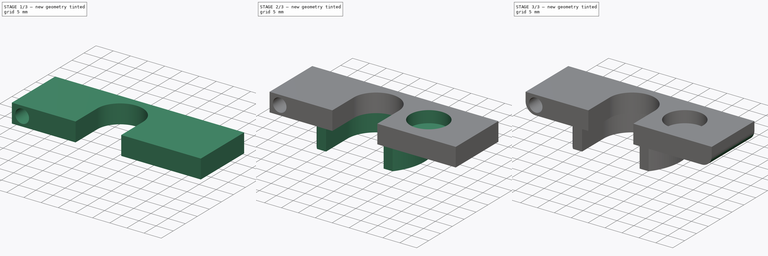
[diagram: build sequence overview — one tinted view per stage of 3, left to right]
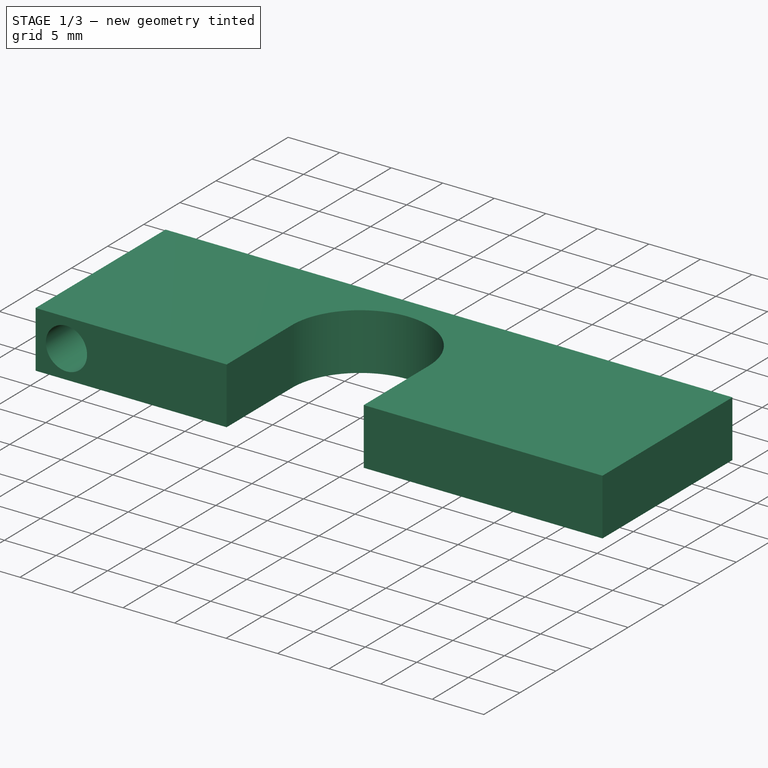
[diagram: stage 1 of 3 — iso view after this stage's code; geometry added in this stage tinted green]
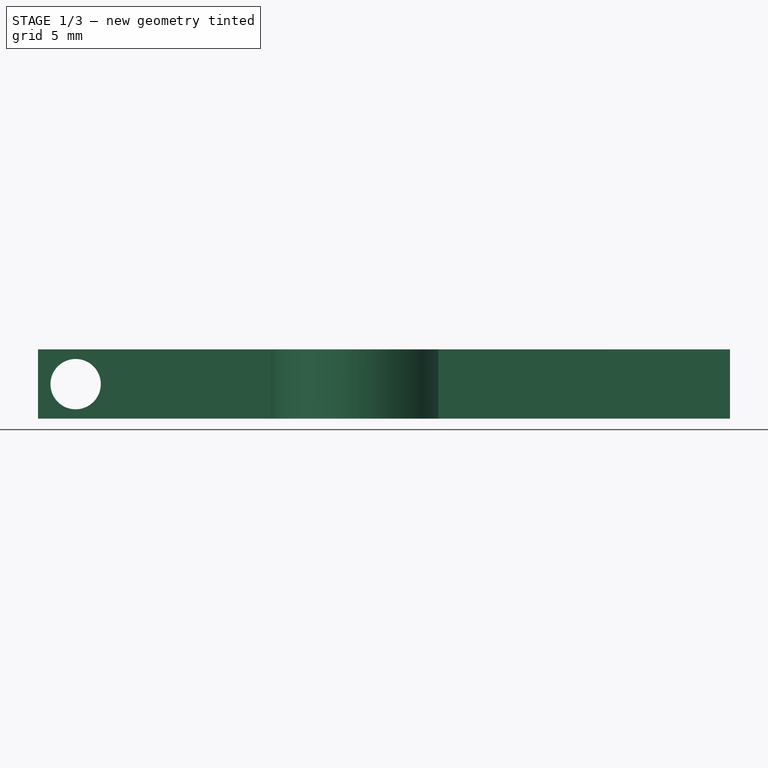
[diagram: stage 1 of 3 — front view after this stage's code; geometry added in this stage tinted green]
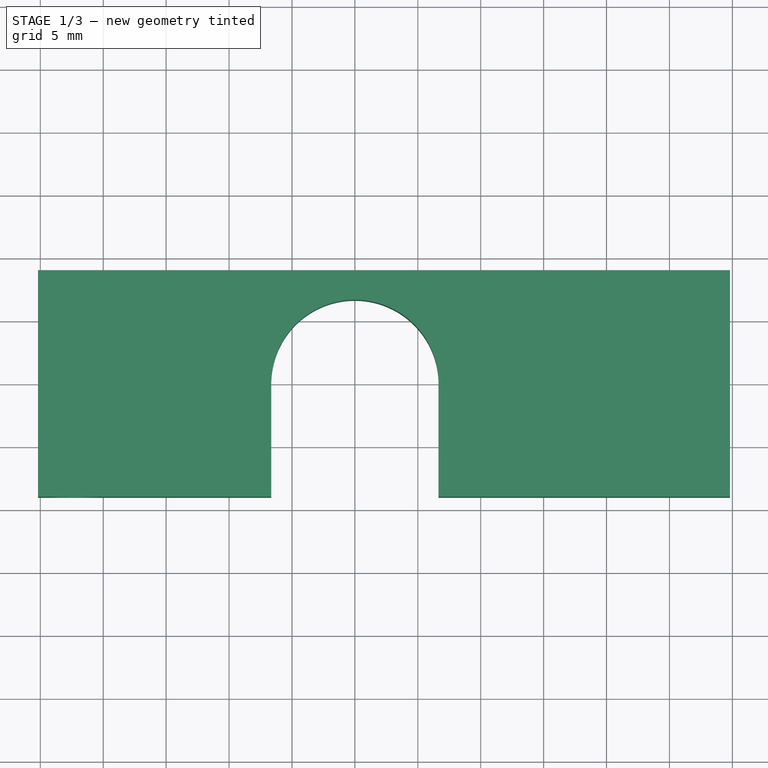
[diagram: stage 1 of 3 — top view after this stage's code; geometry added in this stage tinted green]
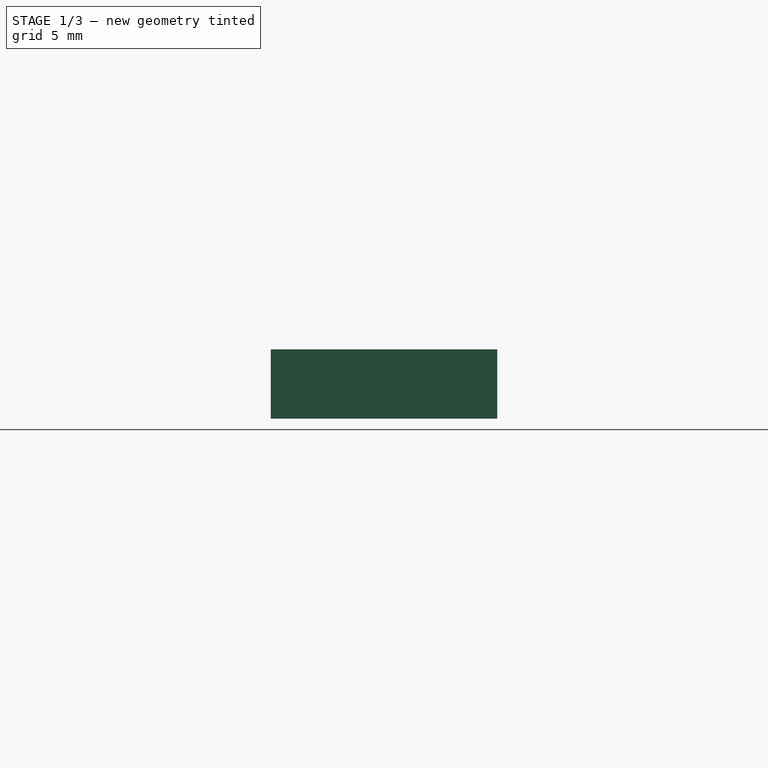
[diagram: stage 1 of 3 — right view after this stage's code; geometry added in this stage tinted green]
FCSTD DOCUMENT  (FreeCAD 0.15R4671 (Git))
Label: ExtruderMount
License: All rights reserved
LicenseURL: http://en.wikipedia.org/wiki/All_rights_reserved
objects: Sketcher::SketchObject×4, PartDesign::Pad×2, PartDesign::Pocket×2, Part::MultiFuse×1, PartDesign::Fillet×1
note: 14 computed .brp shape members not serialized (recipe doc carries the construction recipe); baked Part::Feature solids carry a one-line shape summary decoded from their .brp

FEATURE [Sketcher::SketchObject] Sketch  label="BaseSketch"
  Placement = pos=(0,0,6) rot=(0,0,1;0rad)
  sketch-geometry (8):
    g0: ArcOfCircle CenterX=0 CenterY=0 CenterZ=0 NormalX=0 NormalY=0 NormalZ=1 Radius=6.65 StartAngle=4.483e-09 EndAngle=3.14159
    g1: LineSegment StartX=6.65 StartY=2.9812e-08 StartZ=0 EndX=6.65 EndY=-9 EndZ=0
    g2: LineSegment StartX=-6.65 StartY=5.3691e-08 StartZ=0 EndX=-6.65 EndY=-9 EndZ=0
    g3: LineSegment StartX=-6.65 StartY=-9 StartZ=0 EndX=-25.1864 EndY=-9 EndZ=0
    g4: LineSegment StartX=-25.1864 StartY=-9 StartZ=0 EndX=-25.1864 EndY=9 EndZ=0
    g5: LineSegment StartX=-25.1864 StartY=9 StartZ=0 EndX=29.8136 EndY=9 EndZ=0
    g6: LineSegment StartX=29.8136 StartY=9 StartZ=0 EndX=29.8136 EndY=-9 EndZ=0
    g7: LineSegment StartX=29.8136 StartY=-9 StartZ=0 EndX=6.65 EndY=-9 EndZ=0
  constraints (23):
    c: Coincident(g0,g-1)
    c: Radius(g0) = 6.65
    c: Vertical(g2)
    c: Vertical(g1)
    c: Coincident(g1,g0)
    c: Coincident(g2,g0)
    c: Tangent(g2,g0)
    c: Tangent(g0,g1)
    c: Coincident(g2,g3)
    c: Horizontal(g3)
    c: Coincident(g3,g4)
    c: Vertical(g4)
    c: Coincident(g4,g5)
    c: Horizontal(g5)
    c: Coincident(g5,g6)
    c: Vertical(g6)
    c: Coincident(g6,g7)
    c: Coincident(g7,g1)
    c: Horizontal(g7)
    c: Equal(g1,g2)
    c: Symmetric(g6,g5,g-1)
    c: DistanceY(g0,g1) = -9
    c: DistanceX(g5) = 55
FEATURE [Sketcher::SketchObject] Sketch005
  Placement = pos=(0,0,0) rot=(1,0,0;3.14159rad)
  sketch-geometry (8):
    g0: ArcOfCircle CenterX=0 CenterY=0 CenterZ=0 NormalX=0 NormalY=0 NormalZ=1 Radius=8.5 StartAngle=3.14159 EndAngle=6.28319
    g1: LineSegment StartX=8.5 StartY=1.38816e-07 StartZ=0 EndX=8.5 EndY=9 EndZ=0
    g2: LineSegment StartX=-8.5 StartY=1.12131e-07 StartZ=0 EndX=-8.5 EndY=9 EndZ=0
    g3: LineSegment StartX=8.5 StartY=9 StartZ=0 EndX=11.167 EndY=9 EndZ=0
    g4: LineSegment StartX=-8.5 StartY=9 StartZ=0 EndX=-11.167 EndY=9 EndZ=0
    g5: ArcOfCircle CenterX=0 CenterY=0 CenterZ=0 NormalX=0 NormalY=0 NormalZ=1 Radius=14.3423 StartAngle=5.60483 EndAngle=6.96154
    g6: ArcOfCircle CenterX=-0.460658 CenterY=-0.543383 CenterZ=0 NormalX=0 NormalY=0 NormalZ=1 Radius=14.3423 StartAngle=2.41356 EndAngle=3.77219
    g7: LineSegment StartX=-12.0446 StartY=-9 StartZ=0 EndX=11.167 EndY=-9 EndZ=0
  constraints (23):
    c: Coincident(g0,g-1)
    c: Coincident(g1,g0)
    c: Coincident(g2,g0)
    c: Vertical(g1)
    c: Vertical(g2)
    c: Equal(g2,g1)
    c: Tangent(g1,g0)
    c: Tangent(g2,g0)
    c: Radius(g0) = 8.5
    c: Coincident(g3,g1)
    c: Horizontal(g3)
    c: Coincident(g4,g2)
    c: Horizontal(g4)
    c: DistanceY(g1,g0) = -9
    c: Coincident(g5,g-1)
    c: Coincident(g5,g3)
    c: Coincident(g6,g4)
    c: Coincident(g7,g6)
    c: Coincident(g7,g5)
    c: Horizontal(g7)
    c: Equal(g5,g6)
    c: DistanceY(g5,g3) = 18
    c: Equal(g3,g4)
FEATURE [PartDesign::Pad] Pad
  Length = 5.5
  Length2 = 100
  Placement = pos=(0,0,6) rot=(0,0,1;0rad)
  Sketch = -> Sketch
  Type = 0
FEATURE [Sketcher::SketchObject] Sketch006
  Placement = pos=(0,-9,6) rot=(1,0,0;1.5708rad)
  Support = -> Pad [Face3]
  sketch-geometry (1):
    g0: Circle CenterX=-22.1946 CenterY=2.73961 CenterZ=0 NormalX=0 NormalY=0 NormalZ=1 Radius=2
  constraints (1):
    c: Radius(g0) = 2
FEATURE [PartDesign::Pocket] Pocket001
  Length = 50
  Placement = pos=(0,0,6) rot=(0,0,1;0rad)
  Sketch = -> Sketch006
  Type = 0
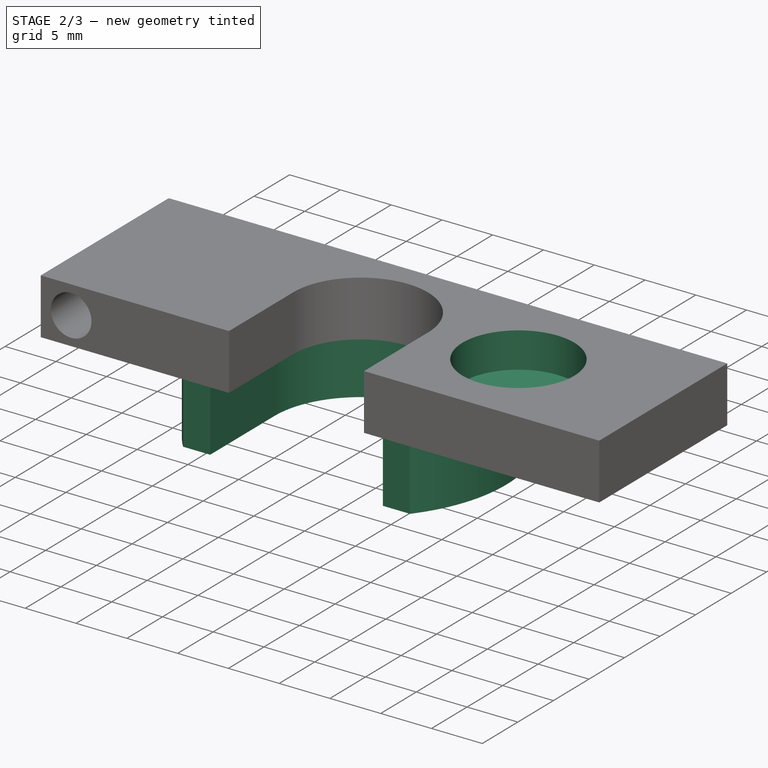
[diagram: stage 2 of 3 — iso view after this stage's code; geometry added in this stage tinted green]
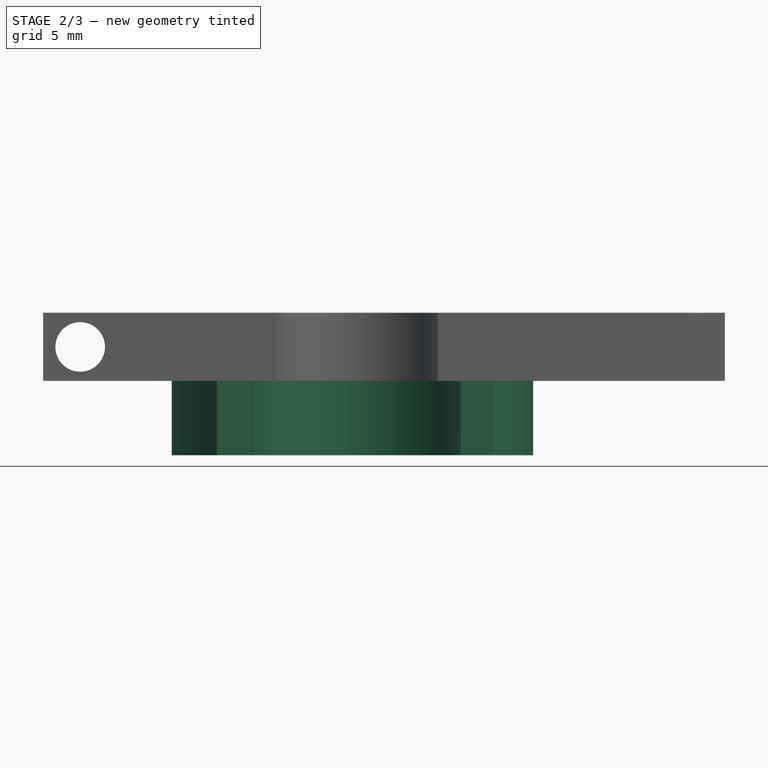
[diagram: stage 2 of 3 — front view after this stage's code; geometry added in this stage tinted green]
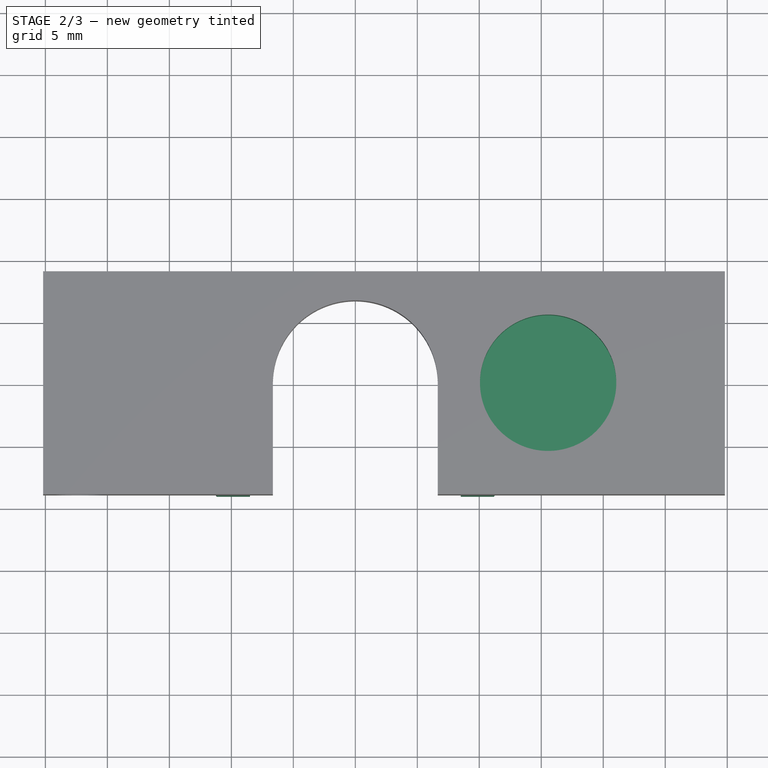
[diagram: stage 2 of 3 — top view after this stage's code; geometry added in this stage tinted green]
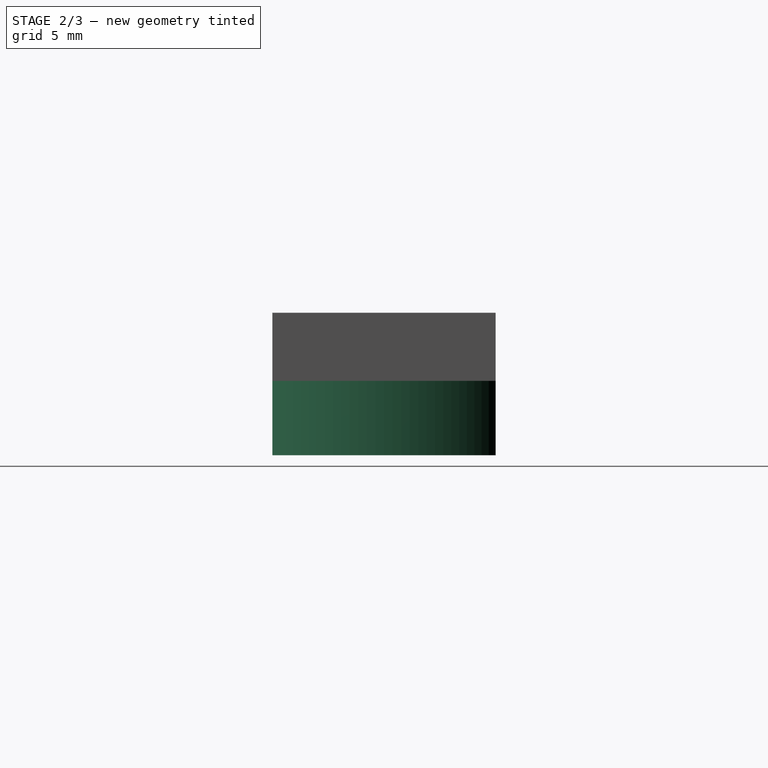
[diagram: stage 2 of 3 — right view after this stage's code; geometry added in this stage tinted green]
FEATURE [PartDesign::Pad] Pad001
  Length = 6
  Length2 = 100
  Placement = pos=(0,0,0) rot=(1,0,0;3.14159rad)
  Reversed = true
  Sketch = -> Sketch005
  Type = 0
FEATURE [Sketcher::SketchObject] Sketch004
  Placement = pos=(0,0,11.5) rot=(0,0,1;0rad)
  Support = -> Pocket001 [Face5]
  sketch-geometry (1):
    g0: Circle CenterX=15.5529 CenterY=0 CenterZ=0 NormalX=0 NormalY=0 NormalZ=1 Radius=5.5
  constraints (3):
    c: PointOnObject(g0,g-1)
    c: DistanceX(g0) = 15.5529
    c: Radius(g0) = 5.5
FEATURE [PartDesign::Pocket] Pocket
  Length = 3.5
  Placement = pos=(0,0,6) rot=(0,0,1;0rad)
  Sketch = -> Sketch004
  Type = 0
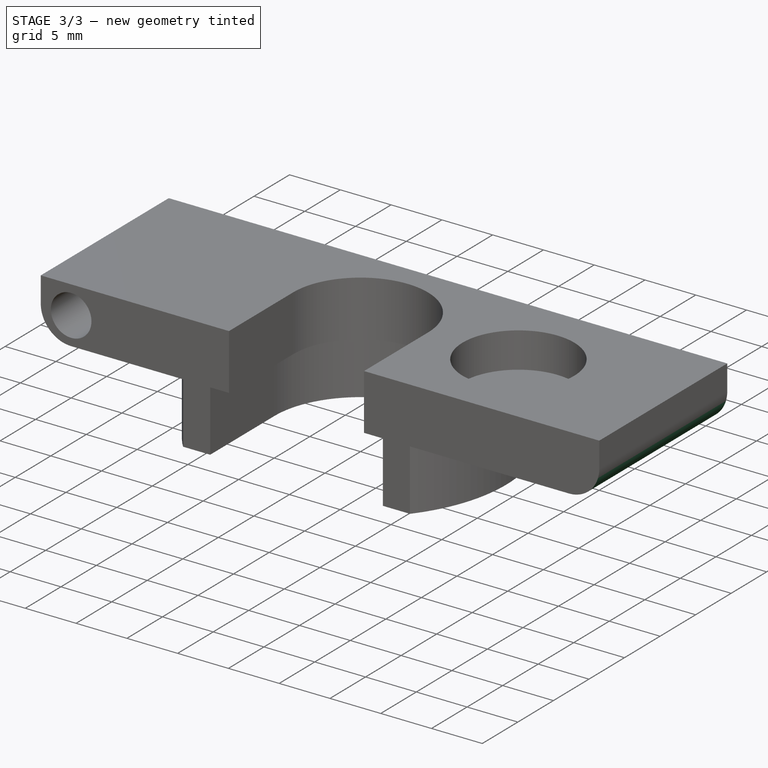
[diagram: stage 3 of 3 — iso view after this stage's code; geometry added in this stage tinted green]
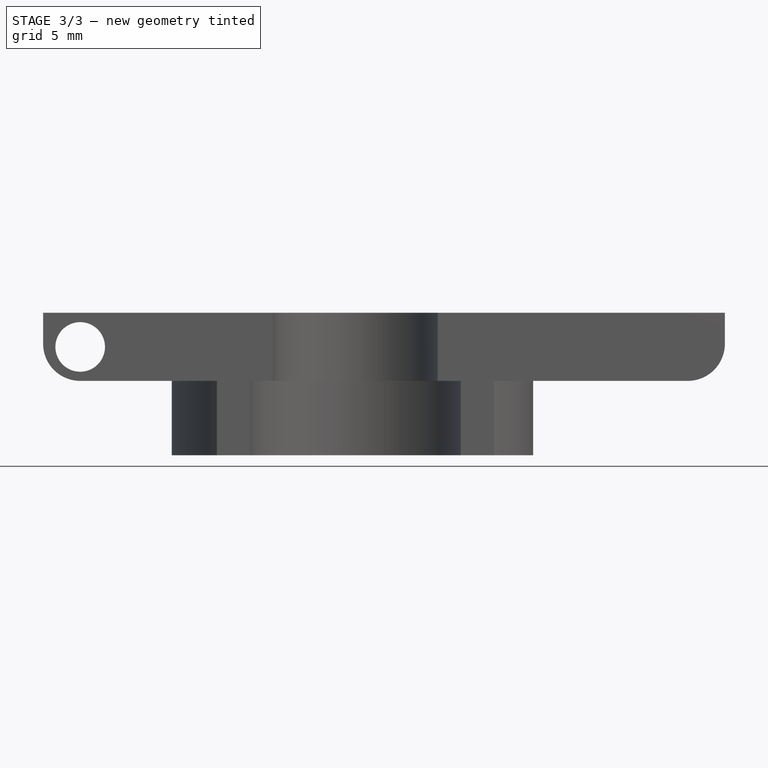
[diagram: stage 3 of 3 — front view after this stage's code; geometry added in this stage tinted green]
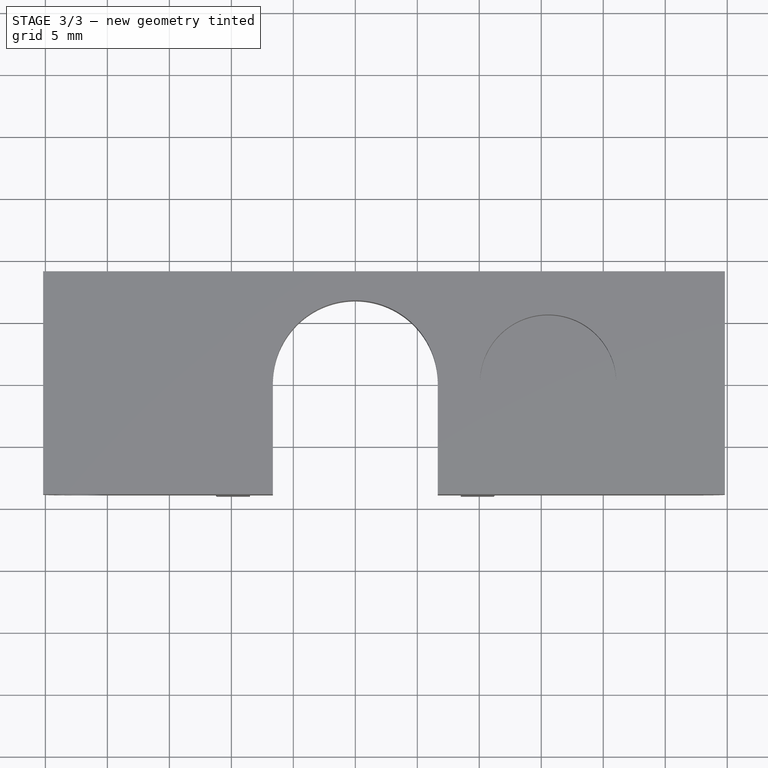
[diagram: stage 3 of 3 — top view after this stage's code; geometry added in this stage tinted green]
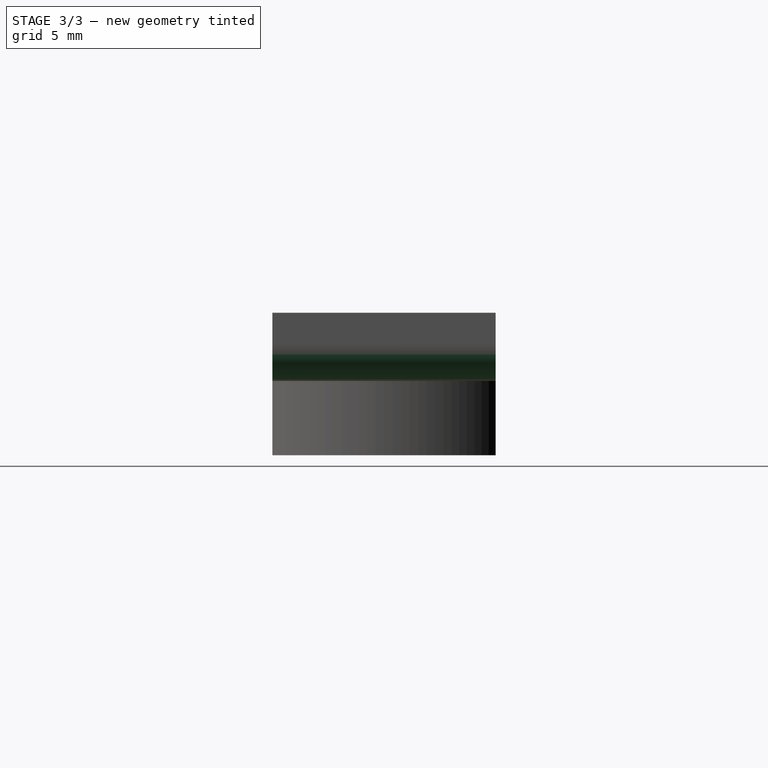
[diagram: stage 3 of 3 — right view after this stage's code; geometry added in this stage tinted green]
FEATURE [Part::MultiFuse] Fusion
  Shapes = -> [Pad001,Pocket]
FEATURE [PartDesign::Fillet] Fillet
  Base = -> Fusion [Edge41,Edge34]
  Radius = 3
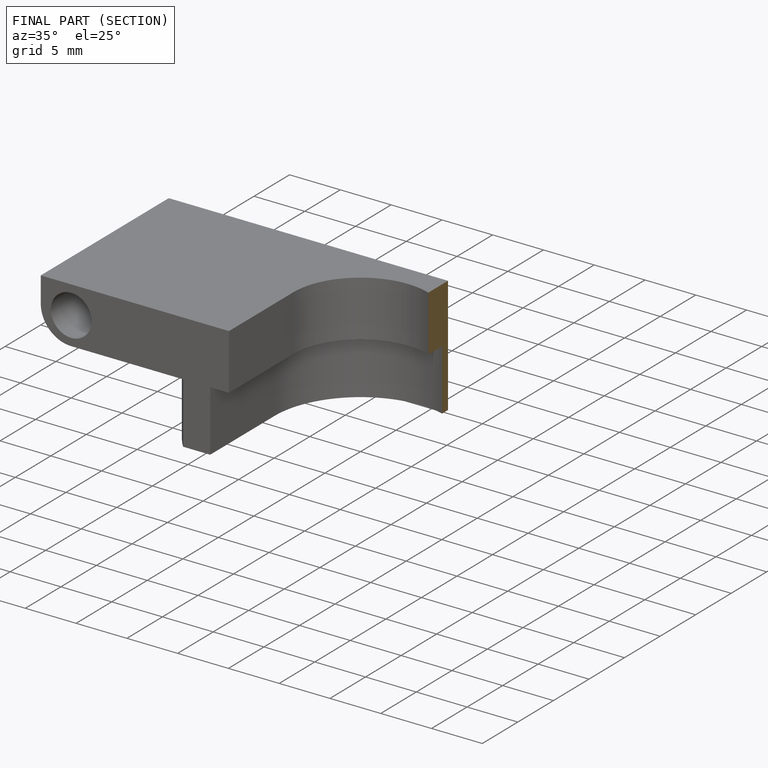
[diagram: finished part — half-section view (interior)]
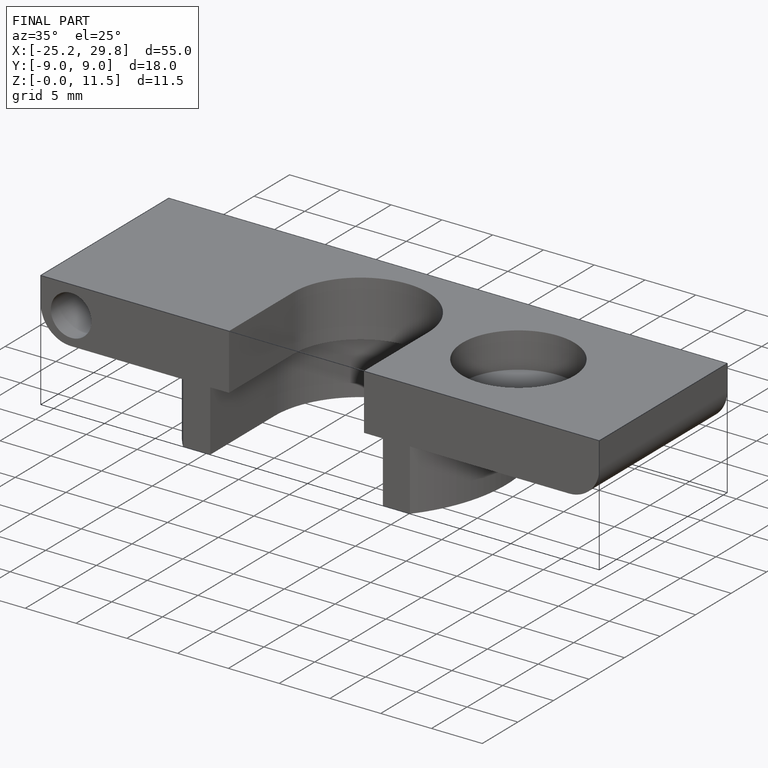
[diagram: finished part — iso view with bounding-box wireframe]
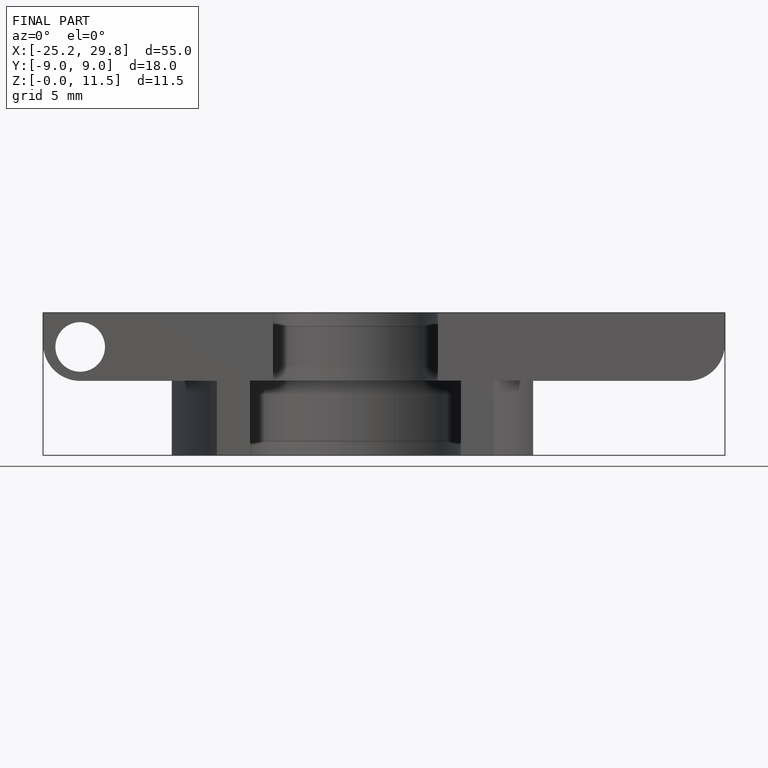
[diagram: finished part — front view with bounding-box wireframe]
